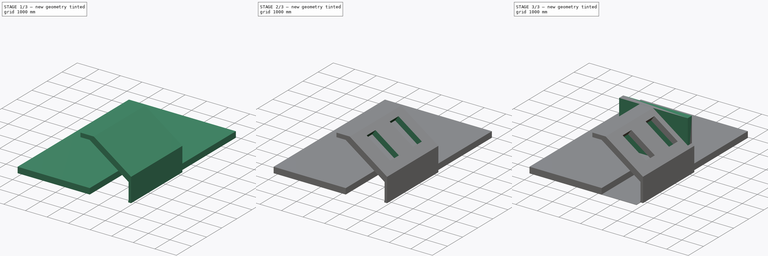
[diagram: build sequence overview — one tinted view per stage of 3, left to right]
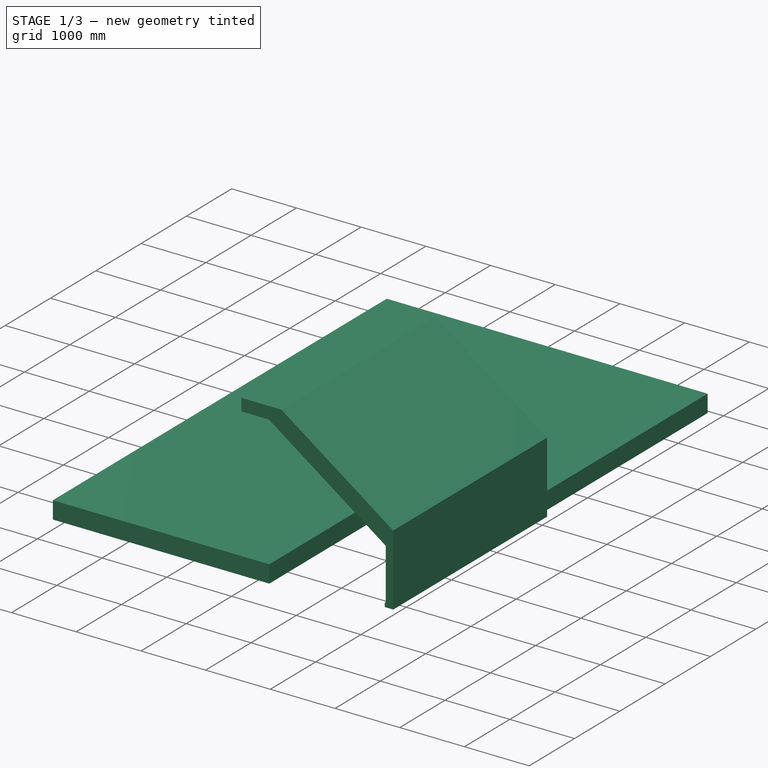
[diagram: stage 1 of 3 — iso view after this stage's code; geometry added in this stage tinted green]
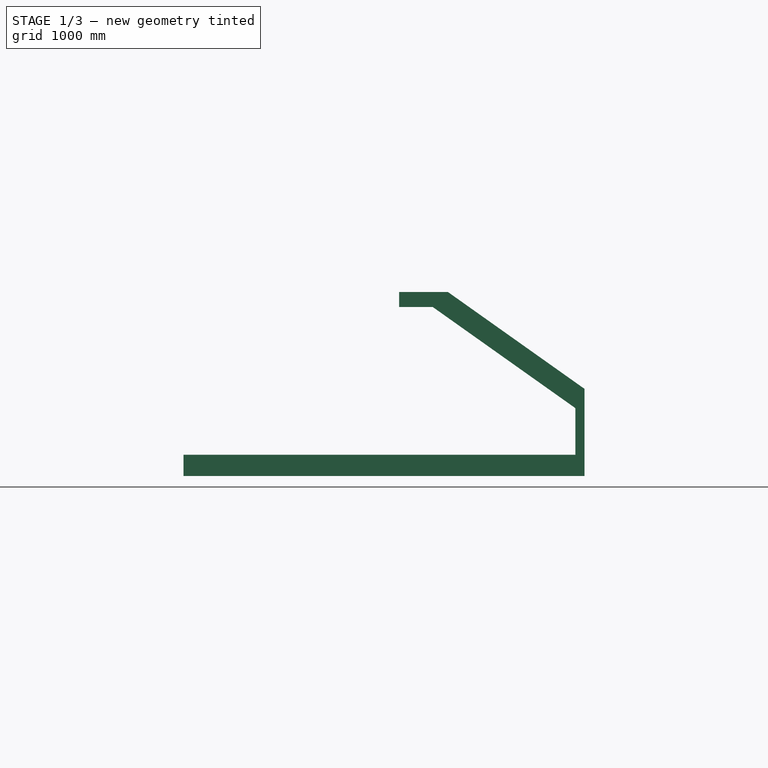
[diagram: stage 1 of 3 — front view after this stage's code; geometry added in this stage tinted green]
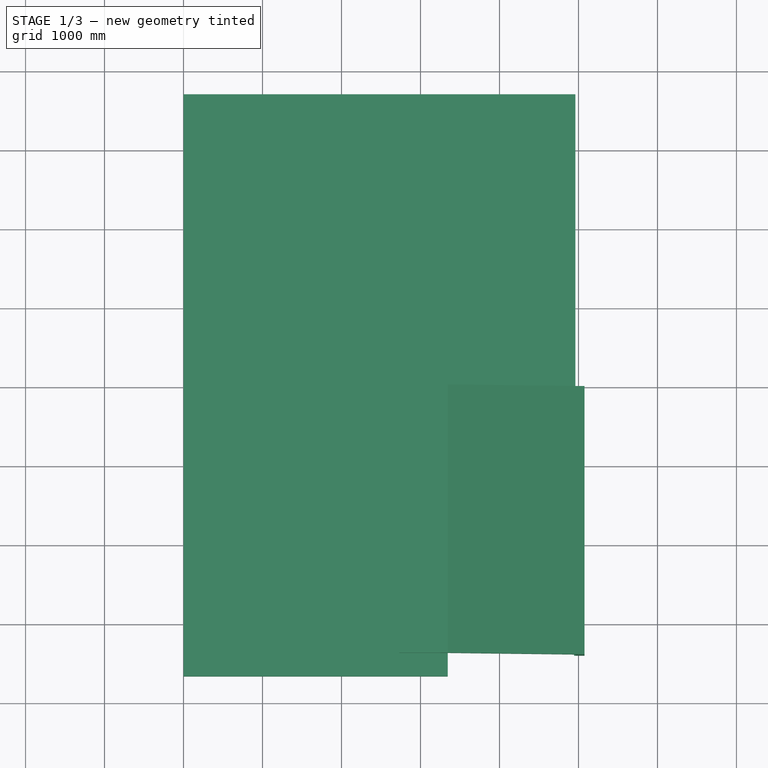
[diagram: stage 1 of 3 — top view after this stage's code; geometry added in this stage tinted green]
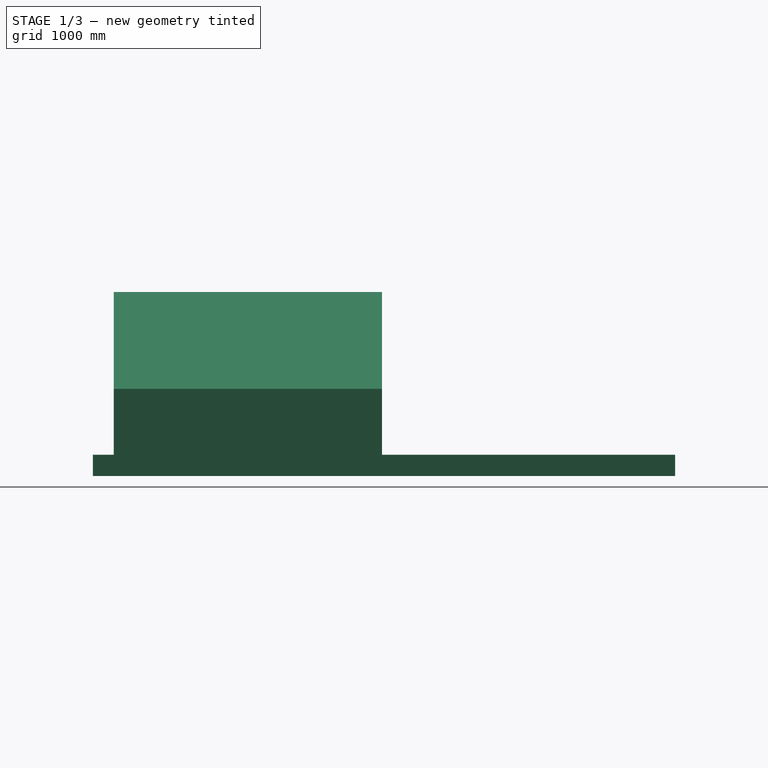
[diagram: stage 1 of 3 — right view after this stage's code; geometry added in this stage tinted green]
FCSTD DOCUMENT  (FreeCAD 0.19R18028 (Git))
Label: room
License: Public Domain
LicenseURL: http://en.wikipedia.org/wiki/Public_domain
objects: Sketcher::SketchObject×9, PartDesign::Body×7, PartDesign::Pad×7, Raytracing::RayFeature×4, PartDesign::Pocket×1, Raytracing::RayProject×1
note: 32 computed .brp shape members not serialized (recipe doc carries the construction recipe); baked Part::Feature solids carry a one-line shape summary decoded from their .brp

FEATURE [PartDesign::Body] Body003  label="wall lr 1"
  Group = -> [Sketch003,Pad002,Sketch004,Pad003]
  Origin = -> Origin003
  SingleSolid = true
  Tip = -> Pad003
FEATURE [Sketcher::SketchObject] Sketch005
  MapMode = 5
  Placement = pos=(0,0,0) rot=(1,0,0;1.5708rad)
  Support = -> [XZ_Plane004]
  sketch-geometry (11):
    g0: LineSegment StartX=2730 StartY=2330 StartZ=0 EndX=2730 EndY=2140 EndZ=0
    g1: LineSegment StartX=2730 StartY=2140 StartZ=0 EndX=3155 EndY=2140 EndZ=0
    g2: LineSegment StartX=3155 StartY=2140 StartZ=0 EndX=4960 EndY=860 EndZ=0
    g3: LineSegment StartX=4960 StartY=860 StartZ=0 EndX=4960 EndY=61 EndZ=0
    g4: LineSegment StartX=4960 StartY=61 StartZ=0 EndX=4944 EndY=61 EndZ=0
    g5: LineSegment StartX=4944 StartY=61 StartZ=0 EndX=4944 EndY=0 EndZ=0
    g6: LineSegment StartX=4944 StartY=0 StartZ=0 EndX=5075.85 EndY=0 EndZ=0
    g7: LineSegment StartX=5075.85 StartY=0 StartZ=0 EndX=5075.85 EndY=1103.88 EndZ=0
    g8: LineSegment StartX=5075.85 StartY=1103.88 StartZ=0 EndX=3346.83 EndY=2330 EndZ=0
    g9: LineSegment StartX=3346.83 StartY=2330 StartZ=0 EndX=2730 EndY=2330 EndZ=0
    g10: LineSegment [constr] StartX=1760 StartY=2330 StartZ=0 EndX=1760 EndY=0 EndZ=0
  constraints (34):
    c: Vertical(g0)
    c: Coincident(g0,g1)
    c: Horizontal(g1)
    c: Coincident(g1,g2)
    c: Coincident(g2,g3)
    c: Vertical(g3)
    c: Coincident(g3,g4)
    c: Horizontal(g4)
    c: Coincident(g4,g5)
    c: PointOnObject(g5,g-1)
    c: Vertical(g5)
    c: Coincident(g5,g6)
    c: Horizontal(g6)
    c: Coincident(g6,g7)
    c: Vertical(g7)
    c: Coincident(g7,g8)
    c: Coincident(g8,g9)
    c: Coincident(g9,g0)
    c: Horizontal(g9)
    c: Parallel(g8,g2)
    c: DistanceX(g-1,g3) = 4960
    c: Distance(g4) = 16
    c: Distance(g0) = 190
    c: Distance(g1) = 425
    c: Distance(g5) = 61
    c: DistanceY(g-1,g0) = 2330
    c: Distance(g1,g8) = 270
    c: Distance(g2,g7) = 270
    c: DistanceY(g-1,g2) = 860
    c: Vertical(g10)
    c: DistanceX(g10,g2) = 3200
    c: PointOnObject(g10,g-1)
    c: Distance(g10) = 2330
    c: Distance(g0,g10) = 970
FEATURE [PartDesign::Pad] Pad004
  ClaimChildren = false
  Length = 3396
  Length2 = 100
  Offset = 4000
  Placement = pos=(0,0,0) rot=(1,0,0;1.5708rad)
  Profile = -> Sketch005
  Type = 0
FEATURE [PartDesign::Body] Body004  label="wall lr 2"
  Group = -> [Sketch005,Pad004,Sketch006,Pocket]
  Origin = -> Origin004
  Placement = pos=(0,-264,0) rot=(0,0,1;0rad)
  SingleSolid = true
  Tip = -> Pocket
FEATURE [Sketcher::SketchObject] Sketch007
  MapMode = 5
  Support = -> [XY_Plane005]
  sketch-geometry (6):
    g0: LineSegment StartX=0 StartY=3710 StartZ=0 EndX=4960 EndY=3710 EndZ=0
    g1: LineSegment StartX=4960 StartY=3710 StartZ=0 EndX=4960 EndY=-260 EndZ=0
    g2: LineSegment StartX=4960 StartY=-260 StartZ=0 EndX=3345 EndY=-260 EndZ=0
    g3: LineSegment StartX=3345 StartY=-260 StartZ=0 EndX=3345 EndY=-3660 EndZ=0
    g4: LineSegment StartX=3345 StartY=-3660 StartZ=0 EndX=0 EndY=-3660 EndZ=0
    g5: LineSegment StartX=0 StartY=-3660 StartZ=0 EndX=0 EndY=3710 EndZ=0
  constraints (18):
    c: Horizontal(g0)
    c: Coincident(g0,g1)
    c: Vertical(g1)
    c: Coincident(g1,g2)
    c: Horizontal(g2)
    c: Coincident(g2,g3)
    c: Vertical(g3)
    c: Coincident(g3,g4)
    c: PointOnObject(g4,g-2)
    c: Horizontal(g4)
    c: Coincident(g4,g5)
    c: Coincident(g5,g0)
    c: Vertical(g5)
    c: Distance(g0) = 4960
    c: Distance(g5) = 7370
    c: Distance(g2) = 1615
    c: DistanceY(g4,g-1) = 3660
    c: Distance(g1) = 3970
FEATURE [PartDesign::Pad] Pad005
  ClaimChildren = false
  Length = 270
  Length2 = 100
  Profile = -> Sketch007
  Type = 0
FEATURE [PartDesign::Body] Body005  label="ceiling"
  Group = -> [Sketch007,Pad005]
  Origin = -> Origin005
  Placement = pos=(0,0,2330) rot=(0,0,1;0rad)
  SingleSolid = true
  Tip = -> Pad005
FEATURE [Sketcher::SketchObject] Sketch008
  MapMode = 5
  Support = -> [XY_Plane006]
  sketch-geometry (4):
    g0: LineSegment StartX=0 StartY=0 StartZ=0 EndX=3155 EndY=0 EndZ=0
    g1: LineSegment StartX=3155 StartY=0 StartZ=0 EndX=3155 EndY=-3660 EndZ=0
    g2: LineSegment StartX=3155 StartY=-3660 StartZ=0 EndX=0 EndY=-3660 EndZ=0
    g3: LineSegment StartX=0 StartY=-3660 StartZ=0 EndX=0 EndY=0 EndZ=0
  constraints (11):
    c: Coincident(g0,g1)
    c: Coincident(g1,g2)
    c: Coincident(g2,g3)
    c: Coincident(g3,g0)
    c: Horizontal(g0)
    c: Horizontal(g2)
    c: Vertical(g1)
    c: Vertical(g3)
    c: Coincident(g0,g-1)
    c: Distance(g3) = 3660
    c: Distance(g0) = 3155
FEATURE [PartDesign::Pad] Pad006
  ClaimChildren = false
  Length = 10
  Length2 = 100
  Profile = -> Sketch008
  Type = 0
FEATURE [PartDesign::Body] Body006  label="ceiling small"
  Group = -> [Sketch008,Pad006]
  Origin = -> Origin006
  Placement = pos=(0,0,2330) rot=(0,0,1;0rad)
  SingleSolid = true
  Tip = -> Pad006
FEATURE [Raytracing::RayFeature] Body001_View
  Result = <blob: 2759 chars omitted>
  Source = -> Body001
  Transparency = 0
FEATURE [Raytracing::RayFeature] Body003_View
  Result = <blob: 5050 chars omitted>
  Source = -> Body003
  Transparency = 0
FEATURE [Raytracing::RayFeature] Body004_View
  Result = <blob: 12341 chars omitted>
  Source = -> Body004
  Transparency = 0
FEATURE [Raytracing::RayFeature] Body006_View
  Result = <blob: 2762 chars omitted>
  Source = -> Body006
  Transparency = 0
FEATURE [Raytracing::RayProject] PovProject
  Camera = // declares position and view direction\n\n// Generated by FreeCAD (http://www.freecadweb.org/)\n#declare cam_location =  <-852.196,1847.66,-4763.29>;\n#declare cam_look_at  = <1937.74,1098.85,-2273.16>;\n#declare cam_sky      = <0.131016,0.980272,0.14799>;\n#declare cam_angle    = 45; \ncamera {\n  location  cam_location\n  look_at   cam_look_at\n  sky       cam_sky\n  angle     cam_angle \n  right x*800/600\n}
  Group = -> [Body001_View,Body003_View,Body004_View,Body006_View]
  Template = <path>
note: 1 file-system path scrubbed to <path> (originals preserved in the JSON sidecar)
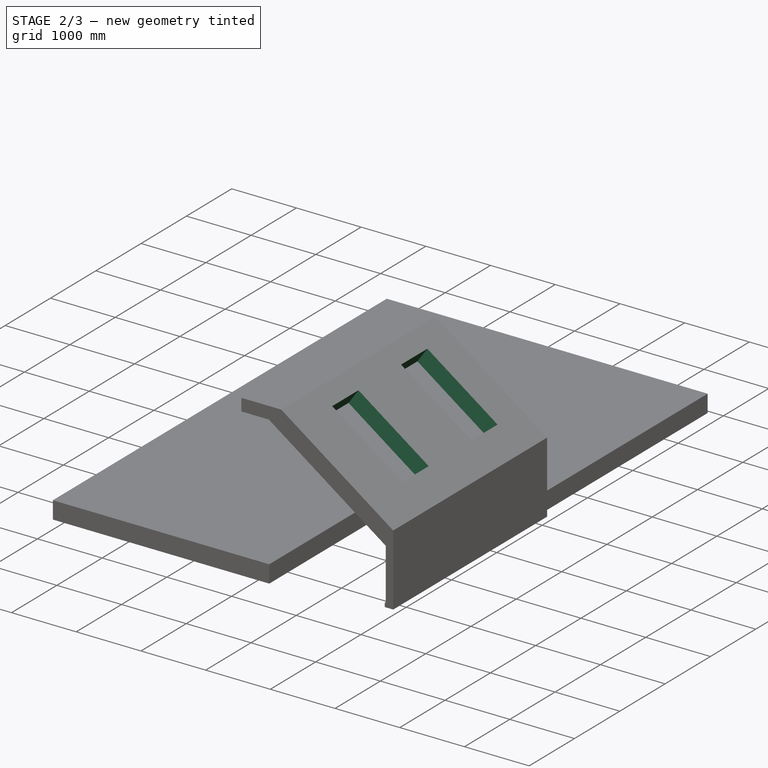
[diagram: stage 2 of 3 — iso view after this stage's code; geometry added in this stage tinted green]
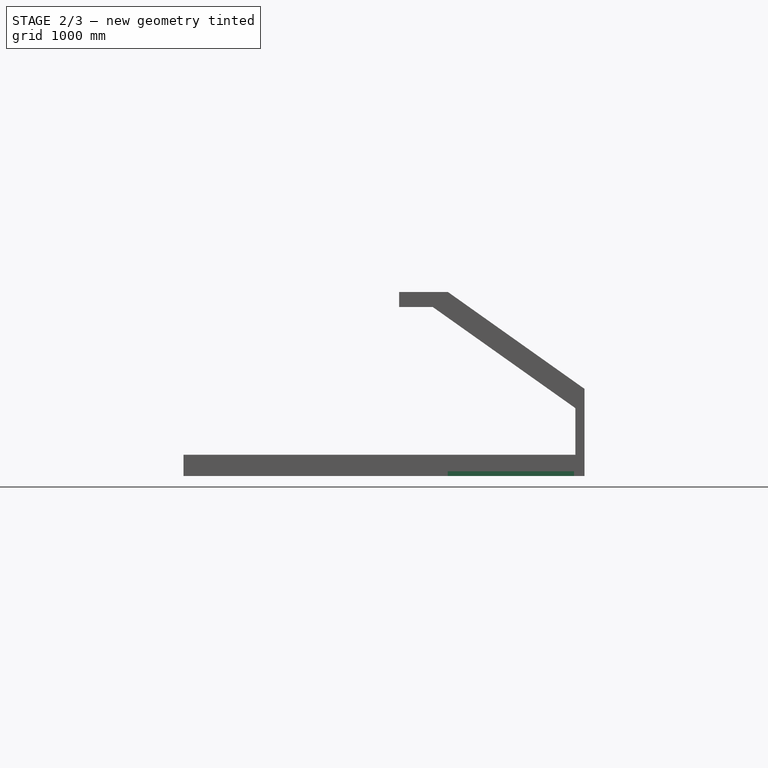
[diagram: stage 2 of 3 — front view after this stage's code; geometry added in this stage tinted green]
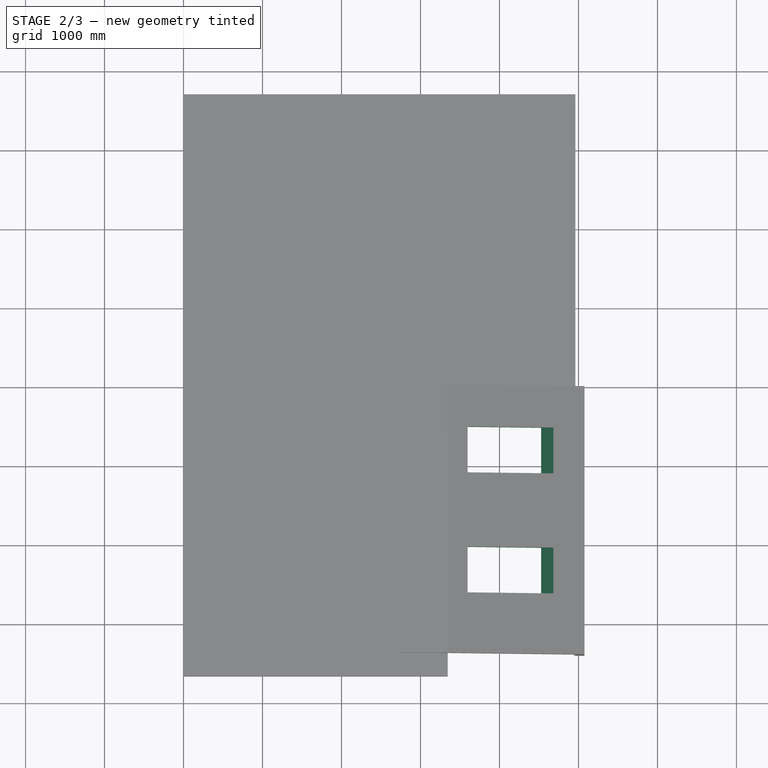
[diagram: stage 2 of 3 — top view after this stage's code; geometry added in this stage tinted green]
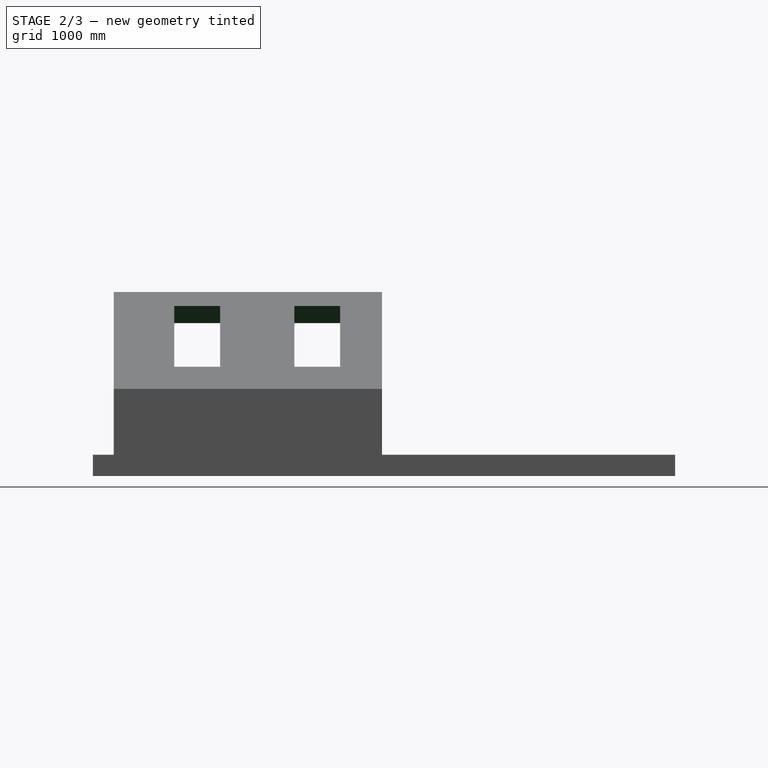
[diagram: stage 2 of 3 — right view after this stage's code; geometry added in this stage tinted green]
FEATURE [PartDesign::Body] Body002  label="floor k"
  Group = -> [Sketch002,Pad001]
  Origin = -> Origin002
  SingleSolid = true
  Tip = -> Pad001
FEATURE [Sketcher::SketchObject] Sketch003
  MapMode = 5
  Support = -> [XY_Plane003]
  expr: Constraints[9] = 4960 - 1760
  sketch-geometry (4):
    g0: LineSegment StartX=1760 StartY=20 StartZ=0 EndX=4960 EndY=20 EndZ=0
    g1: LineSegment StartX=4960 StartY=20 StartZ=0 EndX=4960 EndY=-280 EndZ=0
    g2: LineSegment StartX=4960 StartY=-280 StartZ=0 EndX=1760 EndY=-280 EndZ=0
    g3: LineSegment StartX=1760 StartY=-280 StartZ=0 EndX=1760 EndY=20 EndZ=0
  constraints (12):
    c: Coincident(g0,g1)
    c: Coincident(g1,g2)
    c: Coincident(g2,g3)
    c: Coincident(g3,g0)
    c: Horizontal(g0)
    c: Horizontal(g2)
    c: Vertical(g1)
    c: Vertical(g3)
    c: DistanceX(g-1,g1) = 4960
    c: Distance(g2) = 3200
    c: Distance(g3) = 300
    c: DistanceY(g-1,g0) = 20
FEATURE [PartDesign::Pad] Pad002
  ClaimChildren = false
  Length = 61
  Length2 = 100
  Profile = -> Sketch003
  Type = 0
FEATURE [Sketcher::SketchObject] Sketch006
  ExternalGeometry = -> [Pad004]
  MapMode = 5
  Placement = pos=(2065.47,-6.467e-13,2912.63) rot=(0.952815,0,-0.303551;3.14159rad)
  Support = -> [Pad004]
  sketch-geometry (8):
    g0: LineSegment StartX=1688.47 StartY=1110 StartZ=0 EndX=3018.47 EndY=1110 EndZ=0
    g1: LineSegment StartX=3018.47 StartY=1110 StartZ=0 EndX=3018.47 EndY=530 EndZ=0
    g2: LineSegment StartX=3018.47 StartY=530 StartZ=0 EndX=1688.47 EndY=530 EndZ=0
    g3: LineSegment StartX=1688.47 StartY=530 StartZ=0 EndX=1688.47 EndY=1110 EndZ=0
    g4: LineSegment StartX=1688.47 StartY=2630 StartZ=0 EndX=3018.47 EndY=2630 EndZ=0
    g5: LineSegment StartX=3018.47 StartY=2630 StartZ=0 EndX=3018.47 EndY=2050 EndZ=0
    g6: LineSegment StartX=3018.47 StartY=2050 StartZ=0 EndX=1688.47 EndY=2050 EndZ=0
    g7: LineSegment StartX=1688.47 StartY=2050 StartZ=0 EndX=1688.47 EndY=2630 EndZ=0
  constraints (24):
    c: Coincident(g0,g1)
    c: Coincident(g1,g2)
    c: Coincident(g2,g3)
    c: Coincident(g3,g0)
    c: Horizontal(g0)
    c: Horizontal(g2)
    c: Vertical(g1)
    c: Vertical(g3)
    c: Distance(g1) = 580
    c: DistanceY(g-1,g1) = 530
    c: DistanceX(g1,g-3) = 530
    c: Distance(g2) = 1330
    c: Coincident(g4,g5)
    c: Coincident(g5,g6)
    c: Coincident(g6,g7)
    c: Coincident(g7,g4)
    c: Horizontal(g4)
    c: Horizontal(g6)
    c: Vertical(g5)
    c: Vertical(g7)
    c: Equal(g6,g0)
    c: Equal(g5,g1)
    c: Distance(g5,g0) = 940
    c: Vertical(g6,g2)
FEATURE [PartDesign::Pocket] Pocket
  BaseFeature = -> Pad004
  ClaimChildren = false
  Length = 0
  Length2 = 100
  Placement = pos=(0,0,0) rot=(1,0,0;1.5708rad)
  Profile = -> Sketch006
  Type = 1
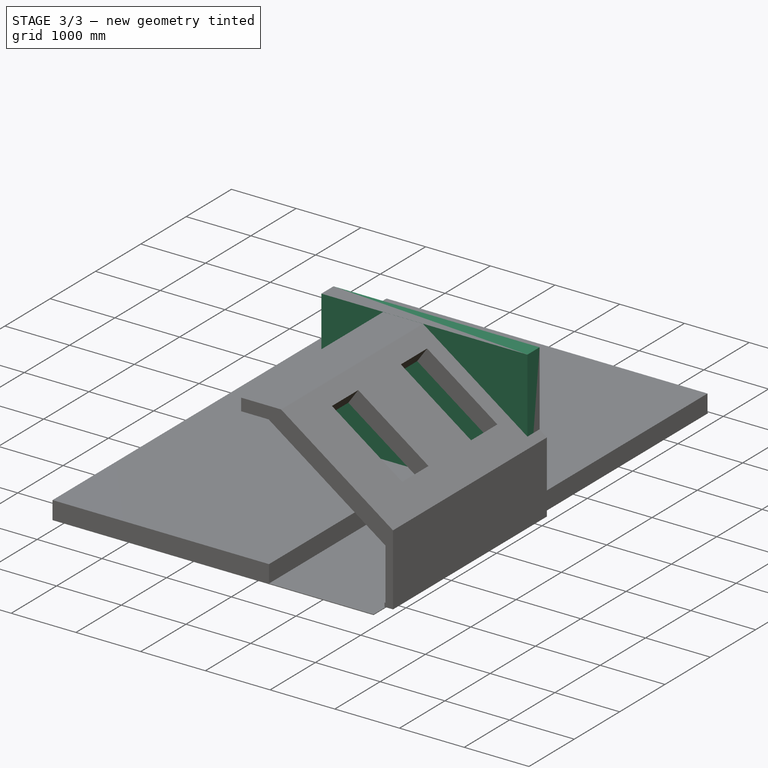
[diagram: stage 3 of 3 — iso view after this stage's code; geometry added in this stage tinted green]
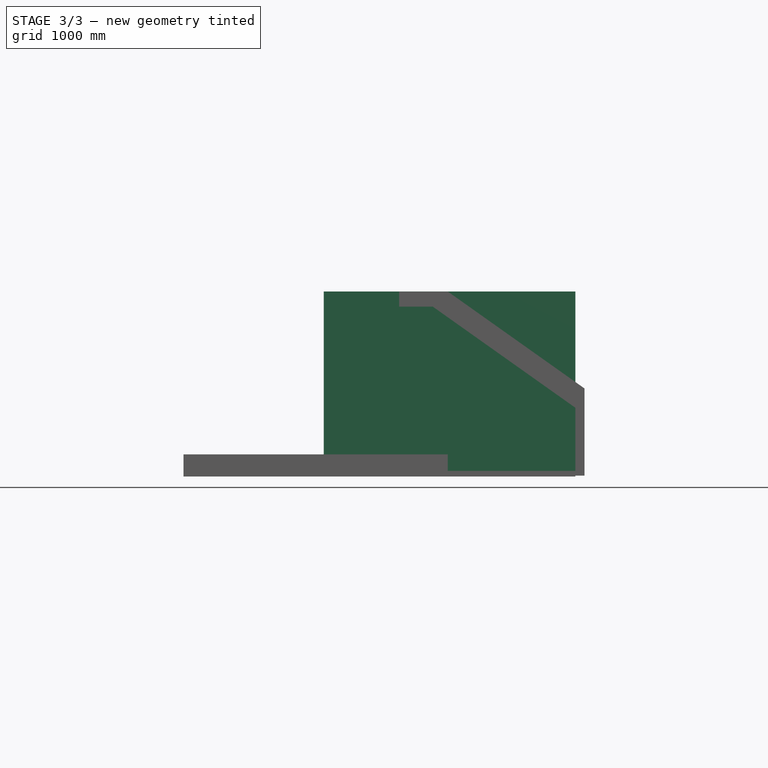
[diagram: stage 3 of 3 — front view after this stage's code; geometry added in this stage tinted green]
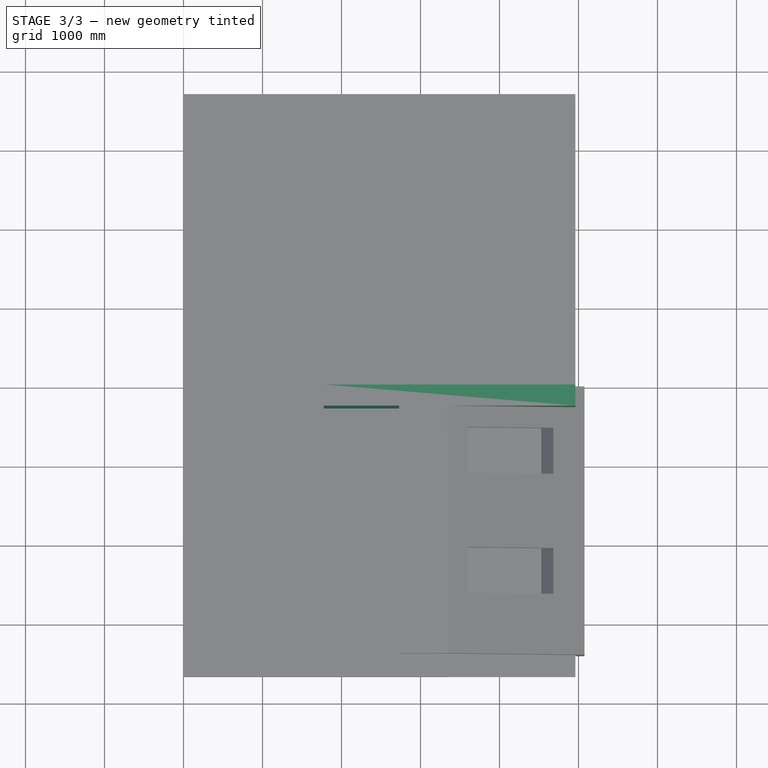
[diagram: stage 3 of 3 — top view after this stage's code; geometry added in this stage tinted green]
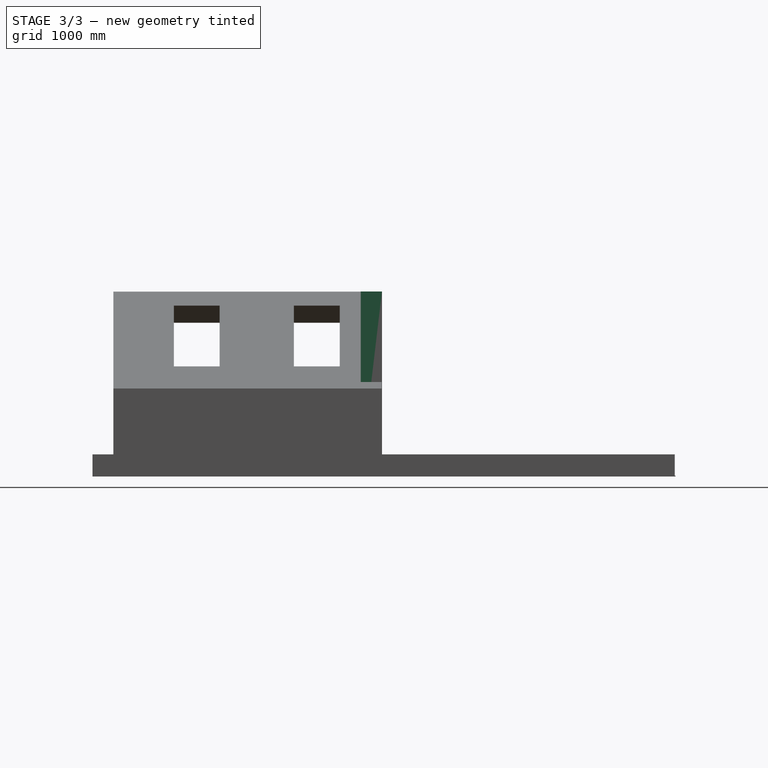
[diagram: stage 3 of 3 — right view after this stage's code; geometry added in this stage tinted green]
FEATURE [Sketcher::SketchObject] Sketch
  MapMode = 5
  Placement = pos=(0,0,0) rot=(1,0,0;1.5708rad)
  Support = -> [XZ_Plane]
  sketch-geometry (7):
    g0: LineSegment StartX=-1300 StartY=-33.6024 StartZ=0 EndX=-1300 EndY=852.861 EndZ=0
    g1: LineSegment StartX=-1300 StartY=852.861 StartZ=0 EndX=-1052.88 EndY=852.861 EndZ=0
    g2: LineSegment StartX=-1052.88 StartY=852.861 StartZ=0 EndX=-1052.88 EndY=753.654 EndZ=0
    g3: LineSegment StartX=-1052.88 StartY=753.654 StartZ=0 EndX=-761.655 EndY=753.654 EndZ=0
    g4: LineSegment StartX=-761.655 StartY=753.654 StartZ=0 EndX=-100 EndY=300 EndZ=0
    g5: LineSegment StartX=-100 StartY=300 StartZ=0 EndX=-100 EndY=-33.6024 EndZ=0
    g6: LineSegment StartX=-100 StartY=-33.6024 StartZ=0 EndX=-1300 EndY=-33.6024 EndZ=0
  constraints (13):
    c: Vertical(g0)
    c: Coincident(g0,g1)
    c: Horizontal(g1)
    c: Coincident(g1,g2)
    c: Vertical(g2)
    c: Coincident(g2,g3)
    c: Horizontal(g3)
    c: Coincident(g3,g4)
    c: Coincident(g4,g5)
    c: Vertical(g5)
    c: Coincident(g5,g6)
    c: Coincident(g6,g0)
    c: Horizontal(g6)
FEATURE [PartDesign::Body] Body
  Group = -> [Sketch]
  Origin = -> Origin
  SingleSolid = true
FEATURE [Sketcher::SketchObject] Sketch001
  MapMode = 5
  Support = -> [XY_Plane001]
  expr: Constraints[10] = 1840 + 1820
  sketch-geometry (4):
    g0: LineSegment StartX=0 StartY=0 StartZ=0 EndX=4960 EndY=0 EndZ=0
    g1: LineSegment StartX=4960 StartY=0 StartZ=0 EndX=4960 EndY=-3660 EndZ=0
    g2: LineSegment StartX=4960 StartY=-3660 StartZ=0 EndX=0 EndY=-3660 EndZ=0
    g3: LineSegment StartX=0 StartY=-3660 StartZ=0 EndX=0 EndY=0 EndZ=0
  constraints (11):
    c: Coincident(g0,g1)
    c: Coincident(g1,g2)
    c: Coincident(g2,g3)
    c: Coincident(g3,g0)
    c: Horizontal(g0)
    c: Horizontal(g2)
    c: Vertical(g1)
    c: Vertical(g3)
    c: Coincident(g0,g-1)
    c: Distance(g0) = 4960
    c: Distance(g3) = 3660
FEATURE [PartDesign::Pad] Pad
  ClaimChildren = false
  Length = 10
  Length2 = 100
  Profile = -> Sketch001
  Reversed = true
  Type = 0
FEATURE [PartDesign::Body] Body001  label="floor lr 1"
  Group = -> [Sketch001,Pad]
  Origin = -> Origin001
  SingleSolid = true
  Tip = -> Pad
FEATURE [Sketcher::SketchObject] Sketch002
  MapMode = 5
  Support = -> [XY_Plane002]
  expr: Constraints[10] = 2060 + 1660
  sketch-geometry (4):
    g0: LineSegment StartX=0 StartY=0 StartZ=0 EndX=4960 EndY=0 EndZ=0
    g1: LineSegment StartX=4960 StartY=0 StartZ=0 EndX=4960 EndY=3720 EndZ=0
    g2: LineSegment StartX=4960 StartY=3720 StartZ=0 EndX=0 EndY=3720 EndZ=0
    g3: LineSegment StartX=0 StartY=3720 StartZ=0 EndX=0 EndY=0 EndZ=0
  constraints (11):
    c: Coincident(g0,g1)
    c: Coincident(g1,g2)
    c: Coincident(g2,g3)
    c: Coincident(g3,g0)
    c: Horizontal(g0)
    c: Horizontal(g2)
    c: Vertical(g1)
    c: Vertical(g3)
    c: Coincident(g0,g-1)
    c: Distance(g2) = 4960
    c: Distance(g3) = 3720
FEATURE [PartDesign::Pad] Pad001
  ClaimChildren = false
  Length = 10
  Length2 = 100
  Profile = -> Sketch002
  Reversed = true
  Type = 0
FEATURE [Sketcher::SketchObject] Sketch004
  ExternalGeometry = -> [Pad002]
  MapMode = 5
  Placement = pos=(0,0,61) rot=(0,0,1;0rad)
  Support = -> [Pad002]
  sketch-geometry (4):
    g0: LineSegment StartX=1776 StartY=4 StartZ=0 EndX=4960 EndY=4 EndZ=0
    g1: LineSegment StartX=4960 StartY=4 StartZ=0 EndX=4960 EndY=-264 EndZ=0
    g2: LineSegment StartX=4960 StartY=-264 StartZ=0 EndX=1776 EndY=-264 EndZ=0
    g3: LineSegment StartX=1776 StartY=-264 StartZ=0 EndX=1776 EndY=4 EndZ=0
  constraints (12):
    c: Coincident(g0,g1)
    c: Coincident(g1,g2)
    c: Coincident(g2,g3)
    c: Coincident(g3,g0)
    c: Horizontal(g0)
    c: Horizontal(g2)
    c: Vertical(g1)
    c: Vertical(g3)
    c: DistanceY(g0,g-5) = 16
    c: DistanceX(g-5,g0) = 16
    c: DistanceY(g-5,g2) = 16
    c: Vertical(g0,g-3)
FEATURE [PartDesign::Pad] Pad003
  BaseFeature = -> Pad002
  ClaimChildren = false
  Length = 2270
  Length2 = 100
  Profile = -> Sketch004
  Type = 0
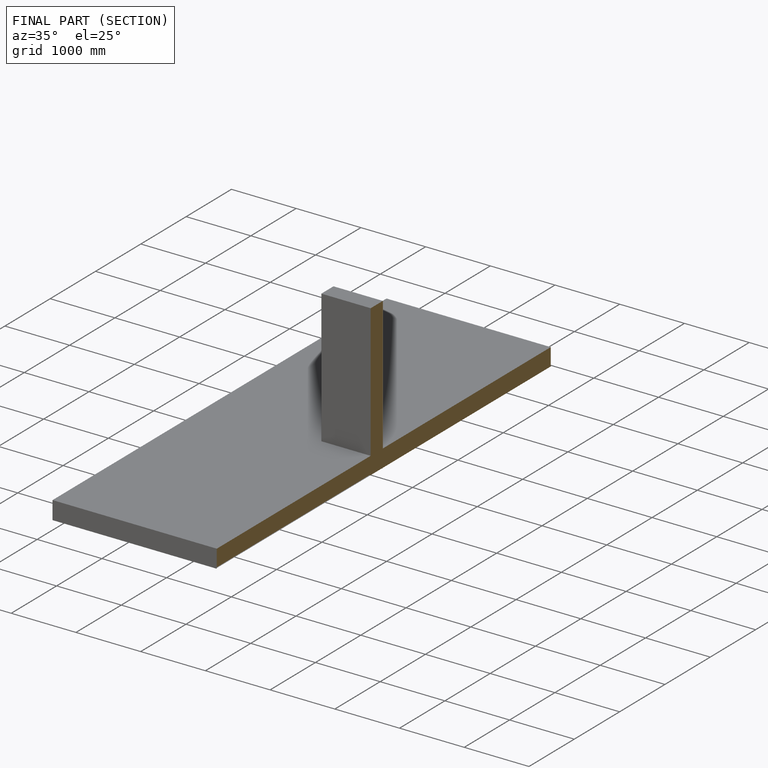
[diagram: finished part — half-section view (interior)]
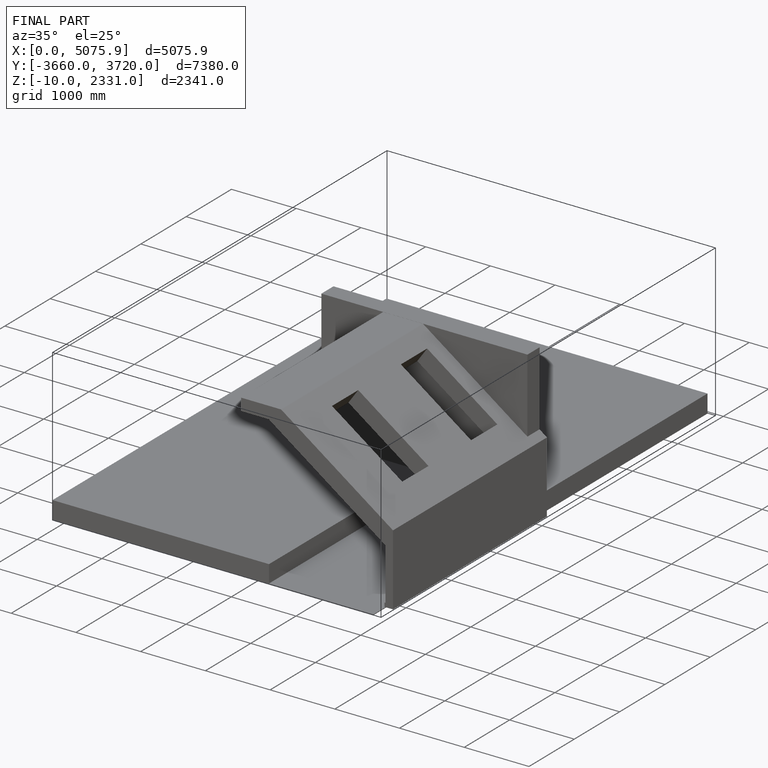
[diagram: finished part — iso view with bounding-box wireframe]
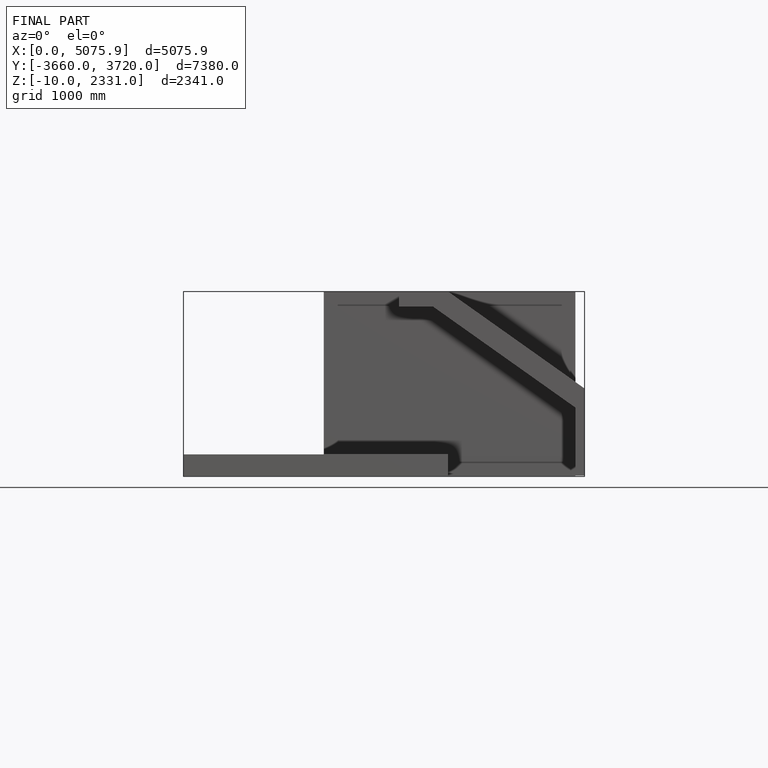
[diagram: finished part — front view with bounding-box wireframe]
